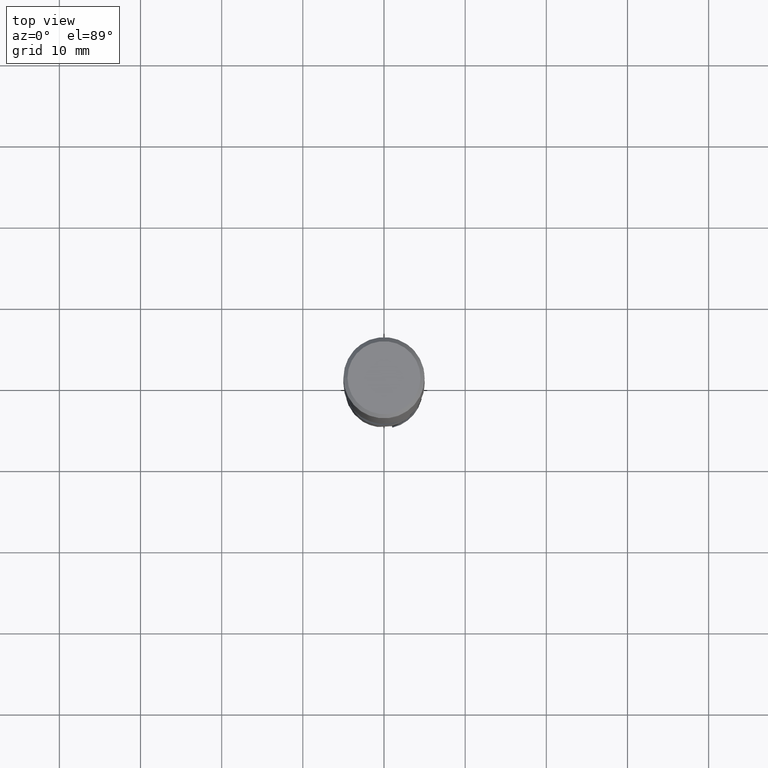
[diagram: clean part render]
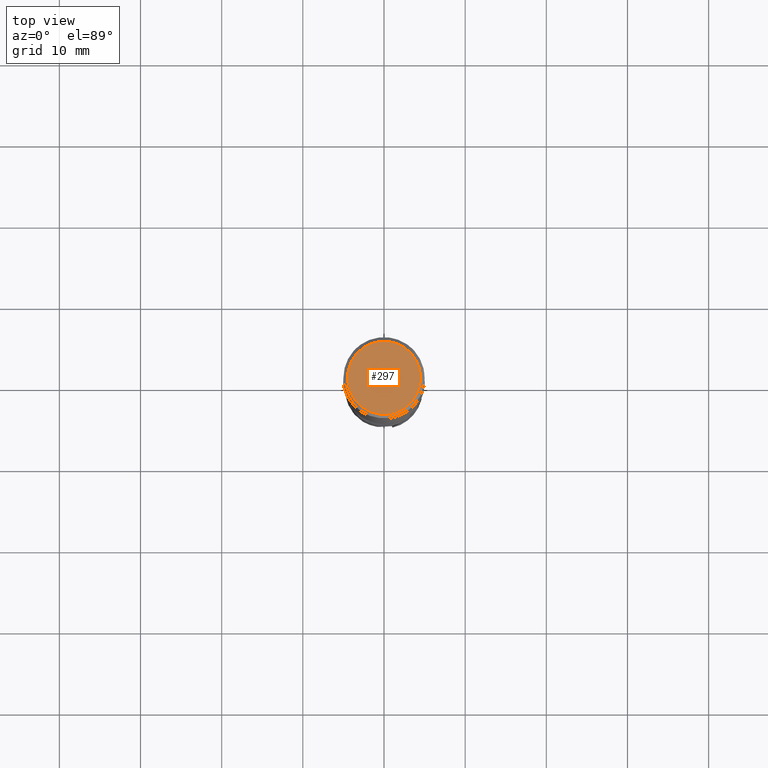
[diagram: same view with one face highlighted and labeled with its STEP entity id]
A machine part, top view. The second image highlights one B-rep face of the part: STEP entity #297.
In plain terms, the highlighted planar face has unit normal (-0, -0, 1).
Its self-contained STEP definition (entity closure, byte-faithful):
#257 = VERTEX_POINT('', #258);
#258 = CARTESIAN_POINT('', (-4.5, 2.75545529808154E-16, 0.));
#264 = EDGE_CURVE('', #257, #257, #265, .T.);
#265 = CIRCLE('', #266, 4.5);
#266 = AXIS2_PLACEMENT_3D('', #267, #268, #269);
#267 = CARTESIAN_POINT('', (-2.18952885050753E-47, 1.25267077750159E-64, -7.44237865339621E-80));
#268 = DIRECTION('', (3.74939945665464E-33, 6.12323399573677E-17, -1.));
#269 = DIRECTION('', (-1., 6.12323399573677E-17, 0.));
#297 = ADVANCED_FACE('', (#298), #301, .T.);
#298 = FACE_OUTER_BOUND('', #299, .T.);
#299 = EDGE_LOOP('', (#300));
#300 = ORIENTED_EDGE('', *, *, #264, .F.);
#301 = PLANE('', #302);
#302 = AXIS2_PLACEMENT_3D('', #303, #304, #305);
#303 = CARTESIAN_POINT('', (7.00035713374682, -7.00035713374682, -4.28648247836569E-16));
#304 = DIRECTION('', (-1.57898385724467E-15, -1.64021619720204E-15, 1.));
#305 = DIRECTION('', (0., 1., 1.64021619720204E-15));